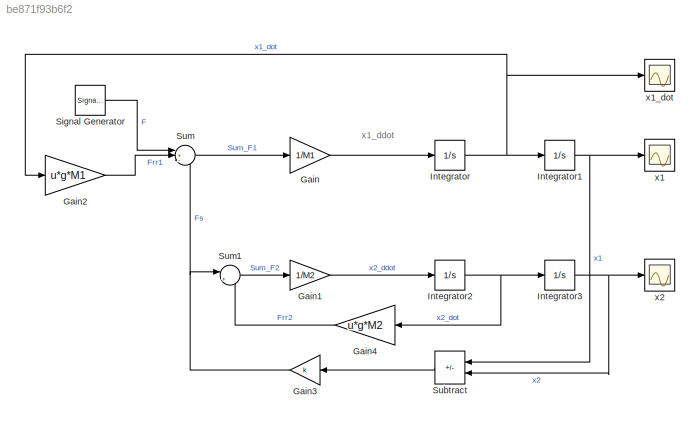
MODEL slx_be871f93b6f2
KIND model
CONFIG AbsTol = auto
CONFIG EnableMultiTasking = off
CONFIG FixedStep = auto
CONFIG MaxStep = auto
CONFIG MinStep = auto
CONFIG RelTol = 1e-3
CONFIG SampleTimeConstraint = Unconstrained
CONFIG SolverName = ode45
CONFIG StartTime = 0.0
CONFIG StopTime = 1000
BLOCK [Gain] Gain
  Gain = 1/M1
BLOCK [Gain] Gain1
  Gain = 1/M2
BLOCK [Gain] Gain2
  Gain = u*g*M1
BLOCK [Gain] Gain3
  Gain = k
BLOCK [Gain] Gain4
  Gain = u*g*M2
BLOCK [Integrator] Integrator
BLOCK [Integrator] Integrator1
BLOCK [Integrator] Integrator2
BLOCK [Integrator] Integrator3
BLOCK [SignalGenerator] Signal Generator
  Amplitude = -1
  Frequency = 0.001
  WaveForm = square
BLOCK [Sum] Subtract
  IconShape = rectangular
  Inputs = +-
BLOCK [Sum] Sum
  Inputs = |+--
BLOCK [Sum] Sum1
  Inputs = |+-
BLOCK [Scope] x1
  Floating = off
  NumInputPorts = 1
  ScopeSpecificationString = Simulink.scopes.TimeScopeBlockCfg('CurrentConfiguration', extmgr.ConfigurationSet(extmgr.Configuration('Core','General UI',true),extmgr.Configuration('Core','Source UI',true),extmgr.Configuration('Sources','WiredSimulink',true),extmgr.Configuration('Visuals','Time Domain',true,'SerializedDisplays',{struct('MinYLimReal','-210.86097','MaxYLimReal','1897.74874','YLabelReal','','MinYLimMag',' 0.00000'...<+1369ch>
BLOCK [Scope] x1_dot
  Floating = off
  NumInputPorts = 1
  ScopeSpecificationString = Simulink.scopes.TimeScopeBlockCfg('CurrentConfiguration', extmgr.ConfigurationSet(extmgr.Configuration('Core','General UI',true),extmgr.Configuration('Core','Source UI',true),extmgr.Configuration('Sources','WiredSimulink',true,'DataLoggingVariableName','ScopeData2'),extmgr.Configuration('Visuals','Time Domain',true,'SerializedDisplays',{struct('MinYLimReal','-4.26029','MaxYLimReal','4.2613','YLabe...<+1394ch>
BLOCK [Scope] x2
  Floating = off
  NumInputPorts = 1
  ScopeSpecificationString = Simulink.scopes.TimeScopeBlockCfg('CurrentConfiguration', extmgr.ConfigurationSet(extmgr.Configuration('Core','General UI',true),extmgr.Configuration('Core','Source UI',true),extmgr.Configuration('Sources','WiredSimulink',true,'DataLoggingVariableName','ScopeData1'),extmgr.Configuration('Visuals','Time Domain',true,'SerializedDisplays',{struct('MinYLimReal','-210.85704','MaxYLimReal','1897.71336',...<+1410ch>
ANNOTATION (root): x1_ddot
LINE Gain1:1 -> Integrator2:1
LINE Gain2:1 -> Sum:2
NET Gain3:1 -> Sum1:1, Sum:3
LINE Gain4:1 -> Sum1:2
LINE Gain:1 -> Integrator:1
NET Integrator1:1 -> Subtract:1, x1:1
NET Integrator2:1 -> Gain4:1, Integrator3:1
NET Integrator3:1 -> Subtract:2, x2:1
NET Integrator:1 -> Gain2:1, Integrator1:1, x1_dot:1
LINE Signal Generator:1 -> Sum:1
LINE Subtract:1 -> Gain3:1
LINE Sum1:1 -> Gain1:1
LINE Sum:1 -> Gain:1
note: NET lines group one-source signal fan-out (src -> all destinations, sorted); 1:1 wires keep LINE
